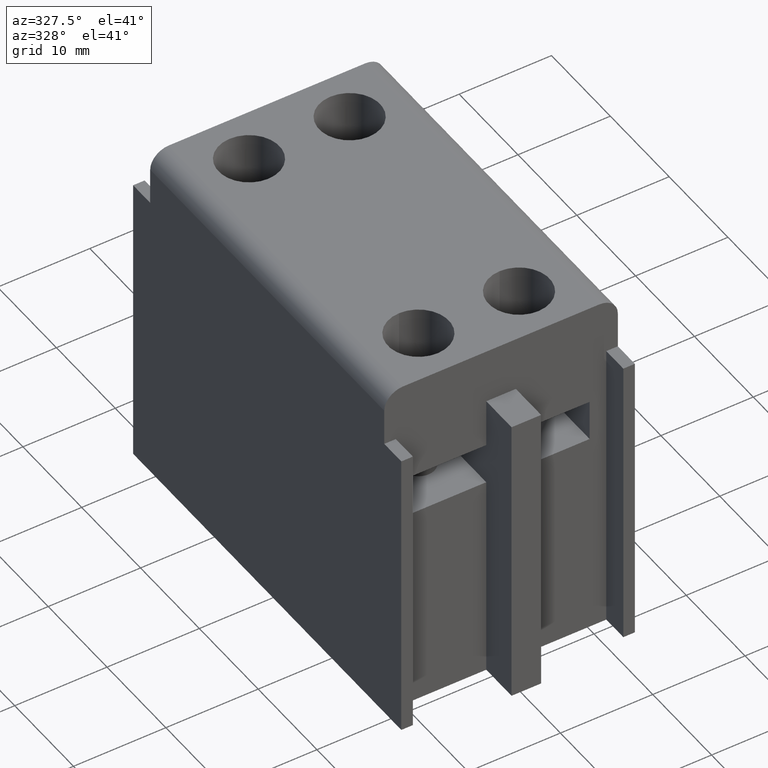
[diagram: clean part render]
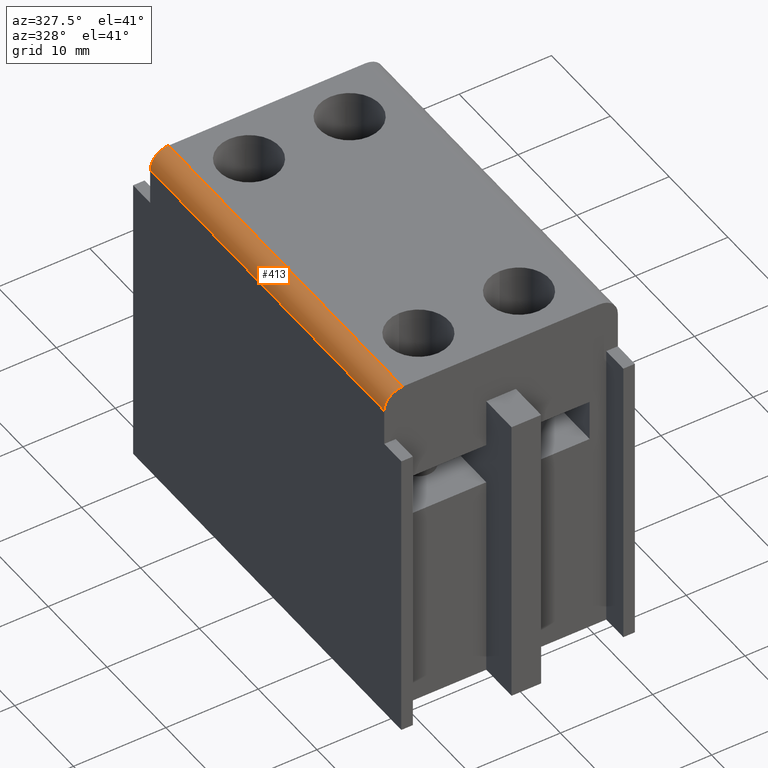
[diagram: same view with one face highlighted and labeled with its STEP entity id]
A machine part, auxiliary view. The second image highlights one B-rep face of the part: STEP entity #413.
In plain terms, the highlighted cylindrical surface (edge-blend (fillet) strip) has radius 2 mm, axis along (0, -1, 0).
Its self-contained STEP definition (entity closure, byte-faithful):
#109=CYLINDRICAL_SURFACE('',#2837,2.);
#220=FACE_OUTER_BOUND('',#765,.T.);
#236=CIRCLE('',#2667,2.);
#262=CIRCLE('',#2748,2.);
#413=ADVANCED_FACE('',(#220),#109,.T.);
#765=EDGE_LOOP('',(#1459,#1460,#1461,#1462));
#1459=ORIENTED_EDGE('',*,*,#1781,.F.);
#1460=ORIENTED_EDGE('',*,*,#1775,.F.);
#1461=ORIENTED_EDGE('',*,*,#1919,.F.);
#1462=ORIENTED_EDGE('',*,*,#1811,.F.);
#1534=VERTEX_POINT('',#3663);
#1536=VERTEX_POINT('',#3666);
#1541=VERTEX_POINT('',#3678);
#1560=VERTEX_POINT('',#3732);
#1775=EDGE_CURVE('',#1534,#1536,#2114,.T.);
#1781=EDGE_CURVE('',#1536,#1541,#236,.T.);
#1811=EDGE_CURVE('',#1541,#1560,#2145,.T.);
#1919=EDGE_CURVE('',#1560,#1534,#262,.T.);
#2114=LINE('',#3665,#2408);
#2145=LINE('',#3731,#2439);
#2408=VECTOR('',#2932,1.);
#2439=VECTOR('',#2985,1.);
#2667=AXIS2_PLACEMENT_3D('',#3677,#2943,#2944);
#2748=AXIS2_PLACEMENT_3D('',#3962,#3217,#3218);
#2837=AXIS2_PLACEMENT_3D('',#4247,#3517,#3518);
#2932=DIRECTION('',(0.,-1.,0.));
#2943=DIRECTION('',(0.,-1.,0.));
#2944=DIRECTION('',(0.,0.,1.));
#2985=DIRECTION('',(0.,1.,0.));
#3217=DIRECTION('',(0.,1.,-5.52326749582304E-014));
#3218=DIRECTION('',(0.,-5.55111512312578E-014,-1.));
#3517=DIRECTION('',(0.,-1.,0.));
#3518=DIRECTION('',(0.,0.,-1.));
#3663=CARTESIAN_POINT('',(-10.65,19.9000000000062,113.999999999999));
#3665=CARTESIAN_POINT('',(-10.65,-19.9,114.));
#3666=CARTESIAN_POINT('',(-10.65,-19.9,114.));
#3677=CARTESIAN_POINT('',(-10.65,-19.9,112.));
#3678=CARTESIAN_POINT('',(-12.65,-19.9,112.));
#3731=CARTESIAN_POINT('',(-12.65,19.9000000000062,112.));
#3732=CARTESIAN_POINT('',(-12.65,19.9000000000061,112.));
#3962=CARTESIAN_POINT('',(-10.65,19.9000000000061,112.));
#4247=CARTESIAN_POINT('',(-10.65,1.07016788684984E-012,112.));